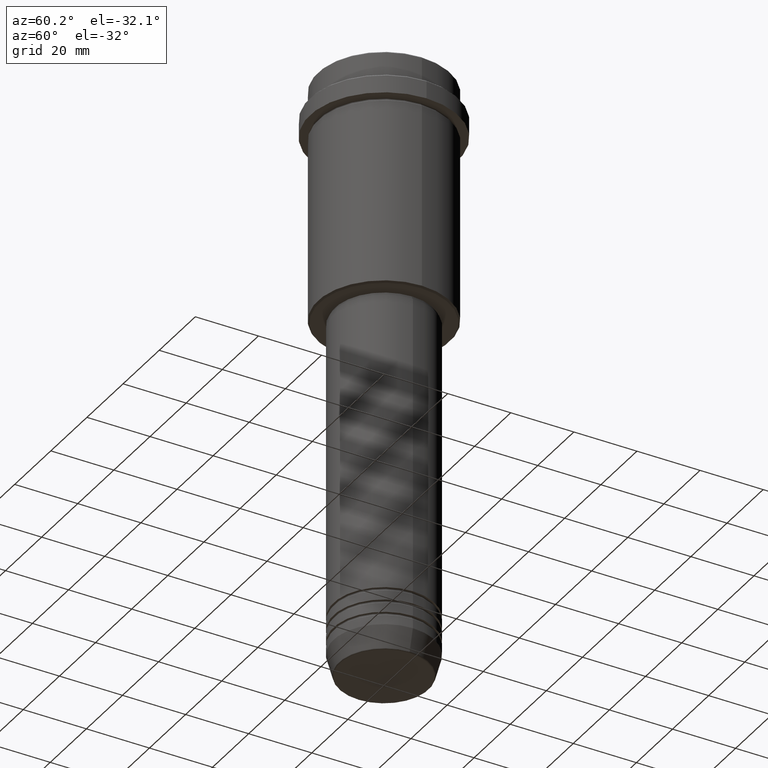
[diagram: clean part render]
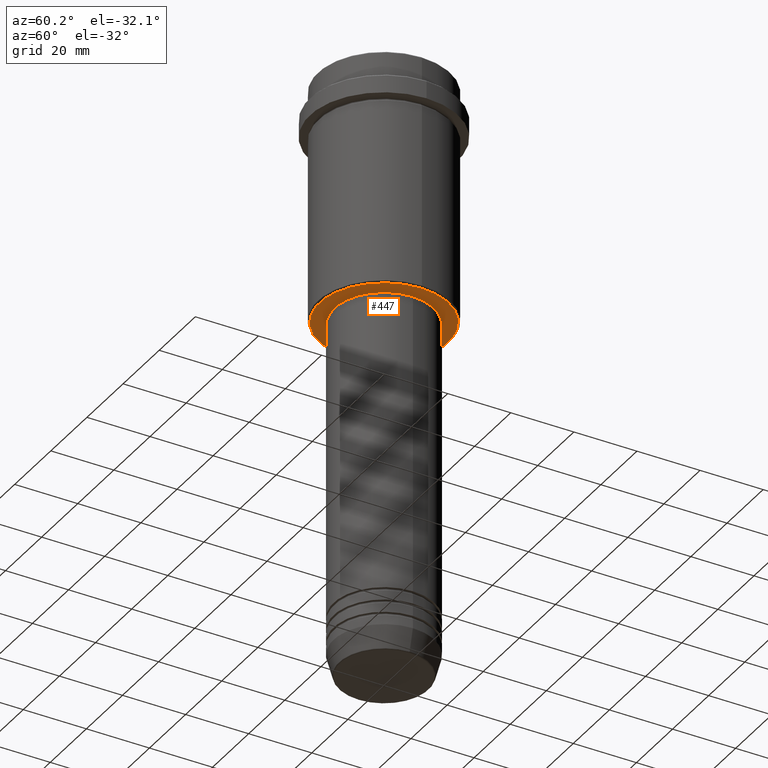
[diagram: same view with one face highlighted and labeled with its STEP entity id]
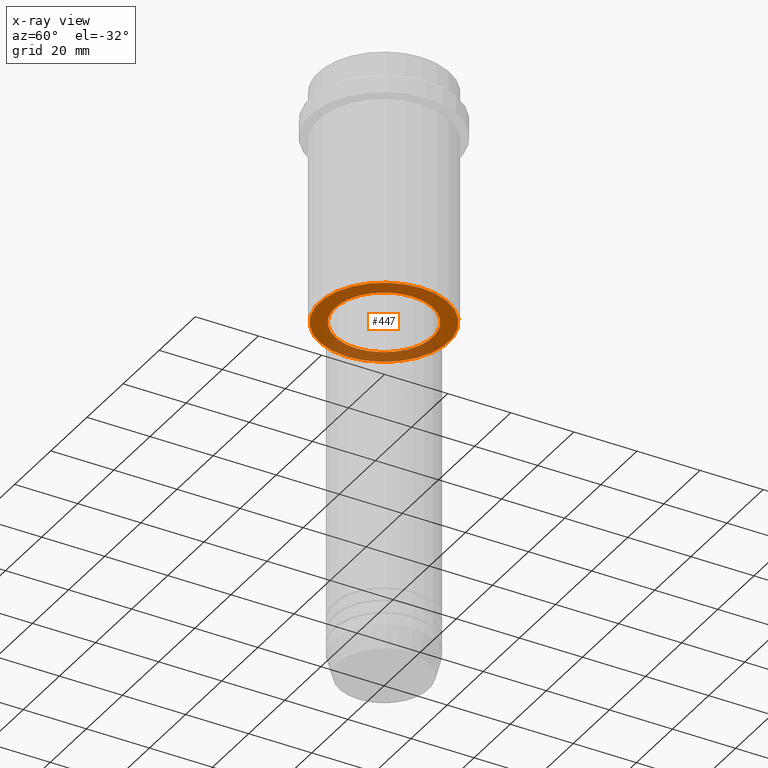
[diagram: x-ray of the same camera — body ghosted, the highlighted face saturated]
A machine part, auxiliary view. The second image highlights one B-rep face of the part: STEP entity #447.
The next image is the same camera in x-ray: the body ghosted, the highlighted face saturated — about 29% of this face is hidden behind the body in this view.
In plain terms, the highlighted planar face has unit normal (0, 0, -1).
Its self-contained STEP definition (entity closure, byte-faithful):
#1 = DIRECTION ( 'NONE',  ( -1.000000000000000000, 0.000000000000000000, -0.000000000000000000 ) ) ;
#14 = AXIS2_PLACEMENT_3D ( 'NONE', #394, #297, #43 ) ;
#43 = DIRECTION ( 'NONE',  ( -1.000000000000000000, 0.000000000000000000, 0.000000000000000000 ) ) ;
#60 = CIRCLE ( 'NONE', #1251, 15.49999999999999645 ) ;
#69 = VERTEX_POINT ( 'NONE', #790 ) ;
#77 = DIRECTION ( 'NONE',  ( -0.000000000000000000, -0.000000000000000000, 1.000000000000000000 ) ) ;
#143 = VERTEX_POINT ( 'NONE', #1272 ) ;
#165 = EDGE_CURVE ( 'NONE', #143, #772, #682, .T. ) ;
#192 = CARTESIAN_POINT ( 'NONE',  ( 0.000000000000000000, 0.000000000000000000, -75.00000000000000000 ) ) ;
#220 = VERTEX_POINT ( 'NONE', #1359 ) ;
#238 = EDGE_LOOP ( 'NONE', ( #656, #556 ) ) ;
#254 = CARTESIAN_POINT ( 'NONE',  ( 0.000000000000000000, 21.00000000000000000, -75.00000000000000000 ) ) ;
#272 = ORIENTED_EDGE ( 'NONE', *, *, #529, .T. ) ;
#297 = DIRECTION ( 'NONE',  ( 0.000000000000000000, 0.000000000000000000, -1.000000000000000000 ) ) ;
#315 = AXIS2_PLACEMENT_3D ( 'NONE', #254, #1211, #1 ) ;
#316 = EDGE_CURVE ( 'NONE', #69, #220, #709, .T. ) ;
#348 = FACE_BOUND ( 'NONE', #907, .T. ) ;
#377 = DIRECTION ( 'NONE',  ( -0.000000000000000000, -0.000000000000000000, 1.000000000000000000 ) ) ;
#389 = AXIS2_PLACEMENT_3D ( 'NONE', #632, #77, #527 ) ;
#394 = CARTESIAN_POINT ( 'NONE',  ( 0.000000000000000000, 0.000000000000000000, -75.00000000000000000 ) ) ;
#447 = ADVANCED_FACE ( 'NONE', ( #1323, #348 ), #1233, .T. ) ;
#527 = DIRECTION ( 'NONE',  ( 1.000000000000000000, 0.000000000000000000, 0.000000000000000000 ) ) ;
#529 = EDGE_CURVE ( 'NONE', #220, #69, #60, .T. ) ;
#556 = ORIENTED_EDGE ( 'NONE', *, *, #1054, .T. ) ;
#599 = AXIS2_PLACEMENT_3D ( 'NONE', #192, #1361, #623 ) ;
#601 = DIRECTION ( 'NONE',  ( 1.000000000000000000, 0.000000000000000000, 0.000000000000000000 ) ) ;
#623 = DIRECTION ( 'NONE',  ( -1.000000000000000000, 0.000000000000000000, 0.000000000000000000 ) ) ;
#632 = CARTESIAN_POINT ( 'NONE',  ( 0.000000000000000000, 0.000000000000000000, -75.00000000000000000 ) ) ;
#656 = ORIENTED_EDGE ( 'NONE', *, *, #165, .T. ) ;
#682 = CIRCLE ( 'NONE', #14, 20.49999999999998934 ) ;
#709 = CIRCLE ( 'NONE', #389, 15.49999999999999645 ) ;
#762 = ORIENTED_EDGE ( 'NONE', *, *, #316, .T. ) ;
#772 = VERTEX_POINT ( 'NONE', #1291 ) ;
#790 = CARTESIAN_POINT ( 'NONE',  ( 15.49999999999999645, 0.000000000000000000, -75.00000000000000000 ) ) ;
#907 = EDGE_LOOP ( 'NONE', ( #762, #272 ) ) ;
#914 = CIRCLE ( 'NONE', #599, 20.49999999999998934 ) ;
#931 = CARTESIAN_POINT ( 'NONE',  ( 0.000000000000000000, 0.000000000000000000, -75.00000000000000000 ) ) ;
#1054 = EDGE_CURVE ( 'NONE', #772, #143, #914, .T. ) ;
#1211 = DIRECTION ( 'NONE',  ( 0.000000000000000000, 0.000000000000000000, -1.000000000000000000 ) ) ;
#1233 = PLANE ( 'NONE',  #315 ) ;
#1251 = AXIS2_PLACEMENT_3D ( 'NONE', #931, #377, #601 ) ;
#1272 = CARTESIAN_POINT ( 'NONE',  ( 20.49999999999998934, 0.000000000000000000, -75.00000000000000000 ) ) ;
#1291 = CARTESIAN_POINT ( 'NONE',  ( -20.49999999999998934, 2.541142108230757480E-15, -75.00000000000000000 ) ) ;
#1323 = FACE_OUTER_BOUND ( 'NONE', #238, .T. ) ;
#1359 = CARTESIAN_POINT ( 'NONE',  ( -15.49999999999999645, 1.898202538678397163E-15, -75.00000000000000000 ) ) ;
#1361 = DIRECTION ( 'NONE',  ( 0.000000000000000000, 0.000000000000000000, -1.000000000000000000 ) ) ;